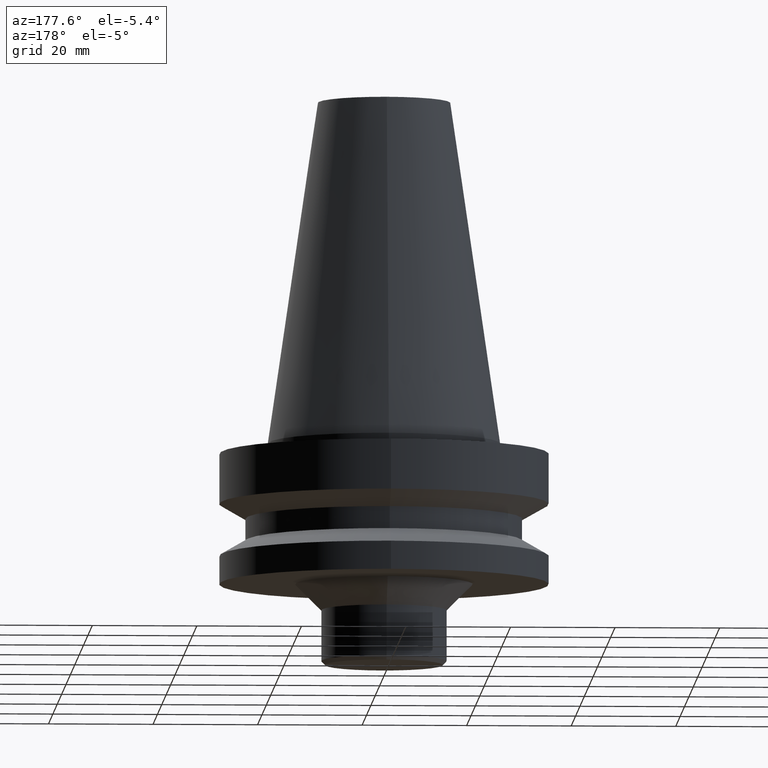
[diagram: clean part render]
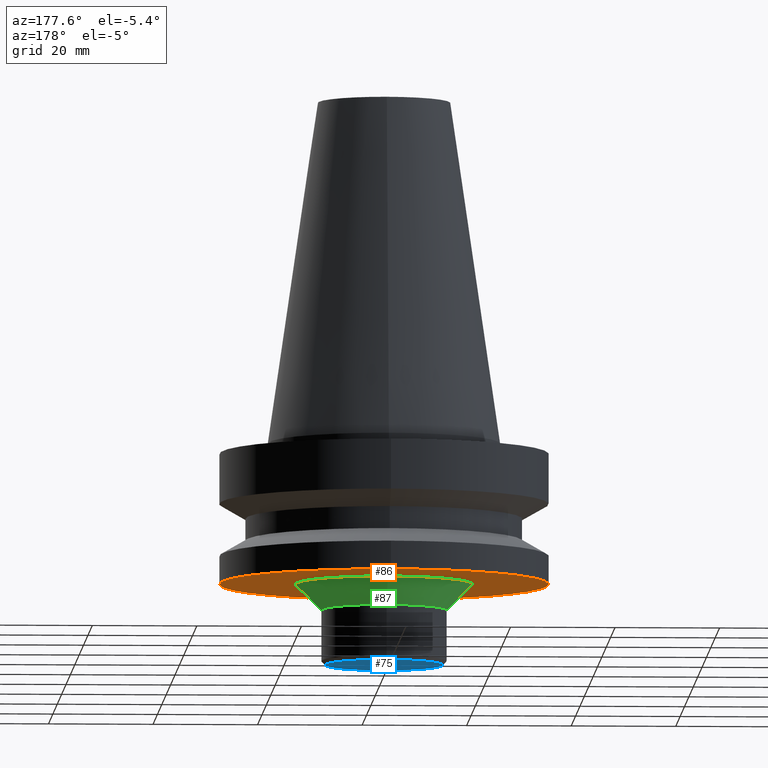
[diagram: same view with three faces highlighted in distinct colors, each labeled with its STEP entity id]
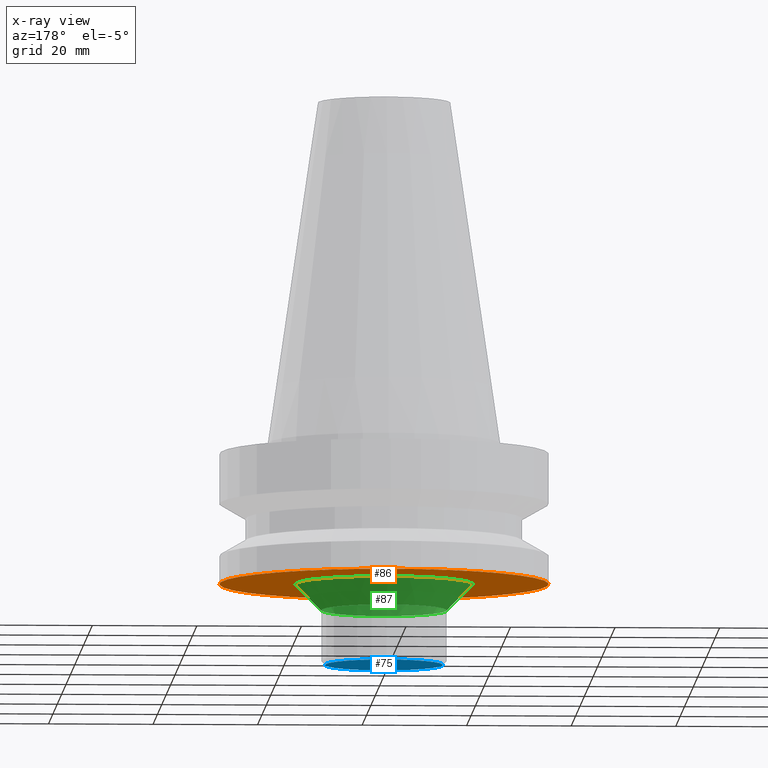
[diagram: x-ray of the same camera — body ghosted, the three highlighted faces saturated]
A machine part, auxiliary view with three faces highlighted in distinct colors.
The next image is the same camera in x-ray (body ghosted, the three faces saturated) — at least one of them is partly hidden behind the body in this view.
Their STEP definitions:

[orange] entity #86 — the highlighted planar face has unit normal (0, 0, -1).
#86=ADVANCED_FACE('',(#121,#122),#123,.T.);
#121=FACE_BOUND('',#161,.T.);
#122=FACE_OUTER_BOUND('',#162,.T.);
#123=PLANE('',#163);
#161=EDGE_LOOP('',(#223));
#162=EDGE_LOOP('',(#224));
#163=AXIS2_PLACEMENT_3D('',#225,#226,#227);
#223=ORIENTED_EDGE('',*,*,#249,.F.);
#224=ORIENTED_EDGE('',*,*,#248,.T.);
#225=CARTESIAN_POINT('',(1.65327317884893E-015,24.25,-27.0));
#226=DIRECTION('',(6.12323399573677E-017,1.22464679914735E-016,-1.0));
#227=DIRECTION('',(-1.23259516440783E-032,1.0,1.22464679914735E-016));
#248=EDGE_CURVE('',#271,#271,#272,.T.);
#249=EDGE_CURVE('',#273,#273,#274,.T.);
#271=VERTEX_POINT('',#297);
#272=CIRCLE('',#298,31.5);
#273=VERTEX_POINT('',#299);
#274=CIRCLE('',#300,17.0);
#297=CARTESIAN_POINT('',(1.65327317884893E-015,31.5,-27.0));
#298=AXIS2_PLACEMENT_3D('',#333,#334,#335);
#299=CARTESIAN_POINT('',(1.65327317884893E-015,17.0,-27.0));
#300=AXIS2_PLACEMENT_3D('',#336,#337,#338);
#333=CARTESIAN_POINT('',(1.65327317884893E-015,3.30654635769785E-015,-27.0));
#334=DIRECTION('',(6.12323399573677E-017,1.22464679914735E-016,-1.0));
#335=DIRECTION('',(-1.23259516440783E-032,1.0,1.22464679914735E-016));
#336=CARTESIAN_POINT('',(1.65327317884893E-015,3.30654635769785E-015,-27.0));
#337=DIRECTION('',(6.12323399573677E-017,1.22464679914735E-016,-1.0));
#338=DIRECTION('',(-1.23259516440783E-032,1.0,1.22464679914735E-016));

[blue] entity #75 — the highlighted planar face has unit normal (0, 0, -1).
#75=ADVANCED_FACE('',(#90),#91,.T.);
#90=FACE_OUTER_BOUND('',#130,.T.);
#91=PLANE('',#131);
#130=EDGE_LOOP('',(#170));
#131=AXIS2_PLACEMENT_3D('',#171,#172,#173);
#170=ORIENTED_EDGE('',*,*,#238,.T.);
#171=CARTESIAN_POINT('',(2.60237444818813E-015,5.62500000000001,-42.5));
#172=DIRECTION('',(6.12323399573677E-017,1.22464679914735E-016,-1.0));
#173=DIRECTION('',(-1.23259516440783E-032,1.0,1.22464679914735E-016));
#238=EDGE_CURVE('',#251,#251,#252,.T.);
#251=VERTEX_POINT('',#277);
#252=CIRCLE('',#278,11.25);
#277=CARTESIAN_POINT('',(2.60237444818813E-015,11.25,-42.5));
#278=AXIS2_PLACEMENT_3D('',#303,#304,#305);
#303=CARTESIAN_POINT('',(2.60237444818813E-015,5.20474889637625E-015,-42.5));
#304=DIRECTION('',(6.12323399573676E-017,1.22464679914735E-016,-1.0));
#305=DIRECTION('',(-1.23259516440783E-032,1.0,1.22464679914735E-016));

[green] entity #87 — the highlighted conical surface has half-angle 45 deg.
#87=ADVANCED_FACE('',(#124,#125),#126,.T.);
#124=FACE_BOUND('',#164,.T.);
#125=FACE_BOUND('',#165,.T.);
#126=CONICAL_SURFACE('',#166,14.5,0.785398163397448);
#164=EDGE_LOOP('',(#228));
#165=EDGE_LOOP('',(#229));
#166=AXIS2_PLACEMENT_3D('',#230,#231,#232);
#228=ORIENTED_EDGE('',*,*,#250,.F.);
#229=ORIENTED_EDGE('',*,*,#249,.T.);
#230=CARTESIAN_POINT('',(1.80635402874235E-015,3.61270805748469E-015,-29.5));
#231=DIRECTION('',(-6.12323399573677E-017,-1.22464679914735E-016,1.0));
#232=DIRECTION('',(-1.23259516440783E-032,1.0,1.22464679914735E-016));
#249=EDGE_CURVE('',#273,#273,#274,.T.);
#250=EDGE_CURVE('',#275,#275,#276,.T.);
#273=VERTEX_POINT('',#299);
#274=CIRCLE('',#300,17.0);
#275=VERTEX_POINT('',#301);
#276=CIRCLE('',#302,12.0);
#299=CARTESIAN_POINT('',(1.65327317884893E-015,17.0,-27.0));
#300=AXIS2_PLACEMENT_3D('',#336,#337,#338);
#301=CARTESIAN_POINT('',(1.95943487863577E-015,12.0,-32.0));
#302=AXIS2_PLACEMENT_3D('',#339,#340,#341);
#336=CARTESIAN_POINT('',(1.65327317884893E-015,3.30654635769785E-015,-27.0));
#337=DIRECTION('',(6.12323399573677E-017,1.22464679914735E-016,-1.0));
#338=DIRECTION('',(-1.23259516440783E-032,1.0,1.22464679914735E-016));
#339=CARTESIAN_POINT('',(1.95943487863577E-015,3.91886975727153E-015,-32.0));
#340=DIRECTION('',(6.12323399573677E-017,1.22464679914735E-016,-1.0));
#341=DIRECTION('',(-1.23259516440783E-032,1.0,1.22464679914735E-016));